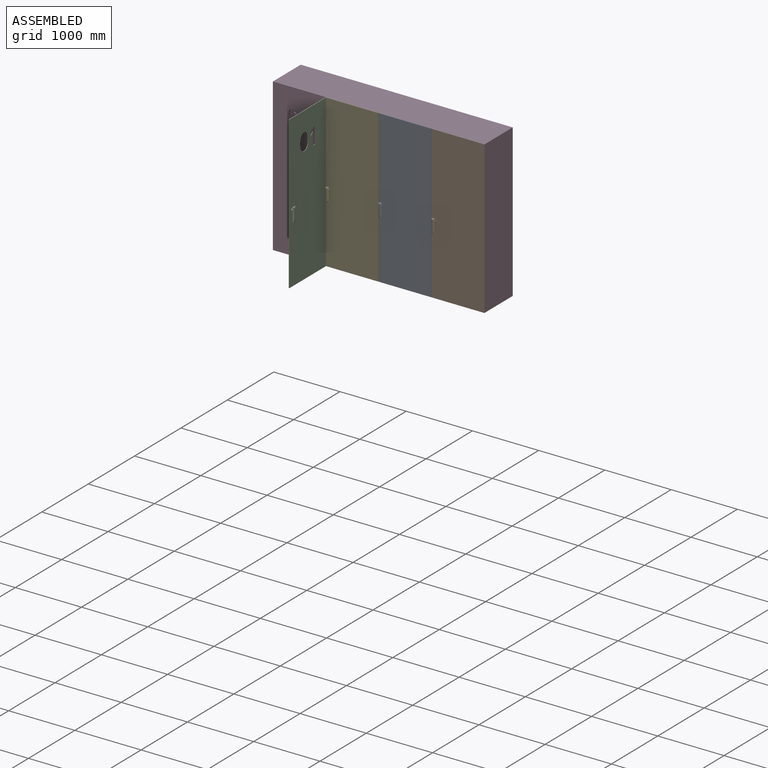
[diagram: assembled view]
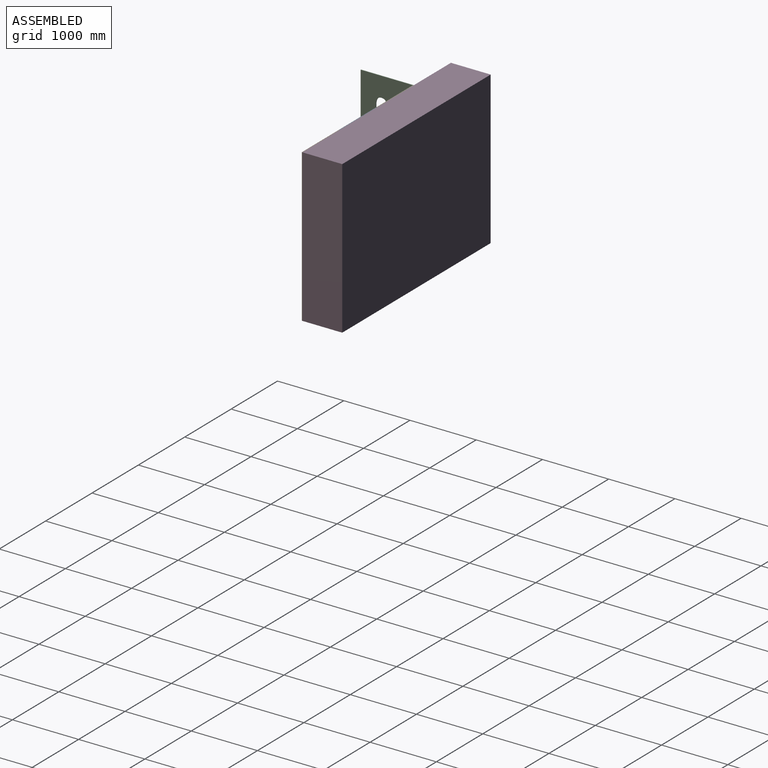
[diagram: assembled view, second angle]
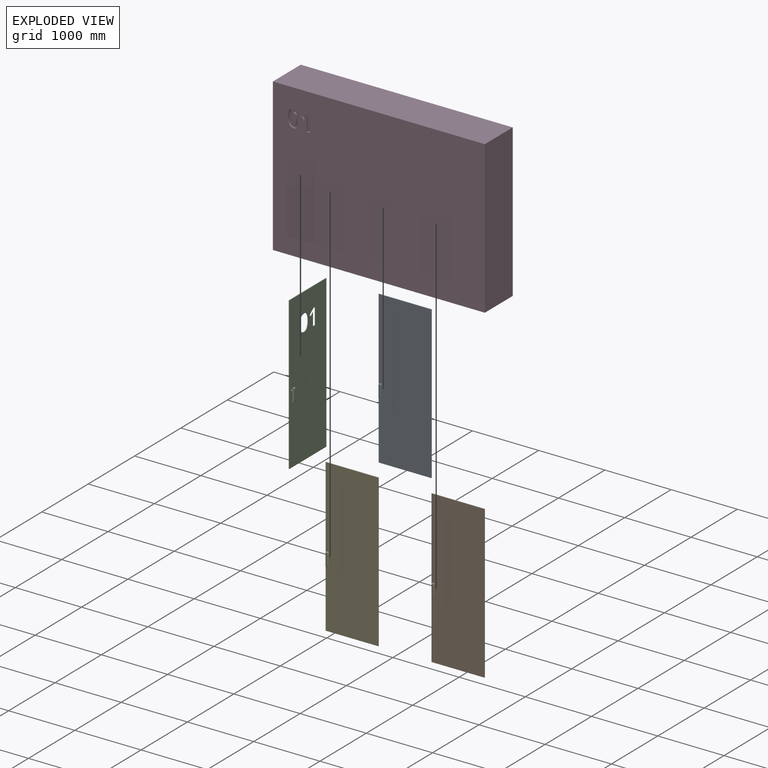
[diagram: exploded view]
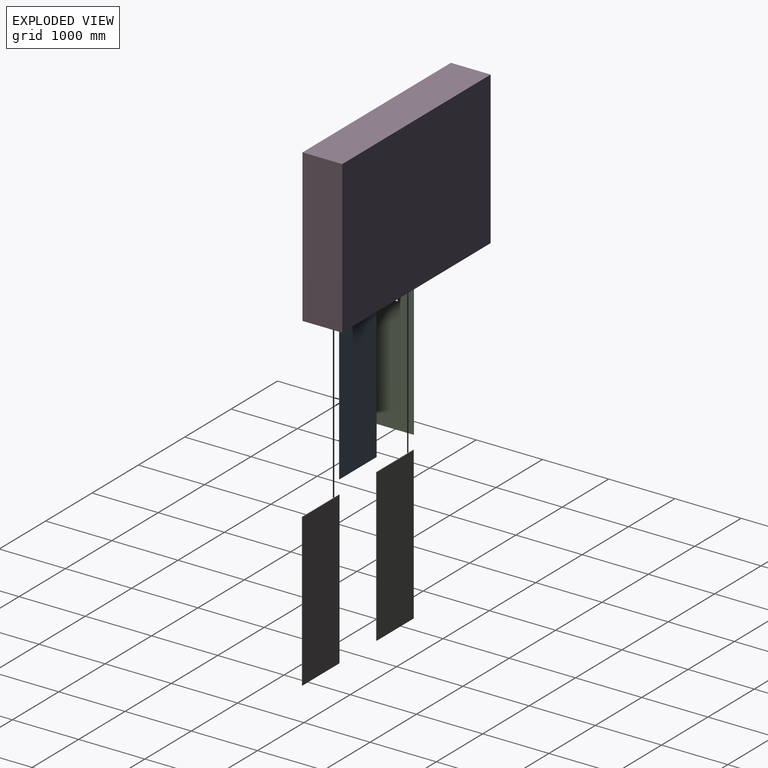
[diagram: exploded view, second angle]
ASSEMBLY  parts=5 mates=4
PART A: 17 faces, bbox 796x55x2300 mm
  f0: cylinder r=20mm len=40mm, axis (0,1,0), area 3141.6mm2, adj f6,f15
  f1: plane 50x5mm, normal (0,0,-1), area 250mm2, adj f2,f4,f6,f7
  f2: plane 200x5mm, normal (1,0,0), area 1000mm2, adj f1,f3,f6,f8
  f3: plane 50x5mm, normal (0,0,1), area 250mm2, adj f2,f4,f6,f10
  f4: plane 200x5mm, normal (-1,0,0), area 1000mm2, adj f1,f3,f6,f9
  f5: plane 170x20mm, normal (0,-1,0), area 3400mm2, adj f7,f8,f9,f10
  f6: plane 200x50mm, normal (0,1,0), area 8743.4mm2, adj f0,f1,f2,f3,f4
  f7: cylinder r=15mm len=50mm, axis (-1,0,0), area 921.2mm2, adj f1,f5,f8,f9
  f8: cylinder r=15mm len=200mm, axis (0,0,-1), area 4455.5mm2, adj f2,f5,f7,f10
  f9: cylinder r=15mm len=200mm, axis (0,0,1), area 4455.5mm2, adj f4,f5,f7,f10
  f10: cylinder r=15mm len=50mm, axis (1,0,0), area 921.2mm2, adj f3,f5,f8,f9
  f11: plane 796x10mm, normal (0,0,1), area 7960mm2, adj f12,f14,f15,f16
  f12: plane 2300x10mm, normal (-1,0,0), area 23000mm2, adj f11,f13,f15,f16
  f13: plane 796x10mm, normal (0,0,-1), area 7960mm2, adj f12,f14,f15,f16
  f14: plane 2300x10mm, normal (1,0,0), area 23000mm2, adj f11,f13,f15,f16
  f15: plane 2300x796mm, normal (0,-1,0), area 1829543.4mm2, adj f0,f11,f12,f13,f14
  f16: plane 2300x796mm, normal (0,1,0), area 1830800mm2, adj f11,f12,f13,f14
PART B: 17 faces, bbox 798x55x2300 mm
  f0: plane 798x10mm, normal (0,0,1), area 7980mm2, adj f1,f3,f4,f5
  f1: plane 2300x10mm, normal (-1,0,0), area 23000mm2, adj f0,f2,f4,f5
  f2: plane 798x10mm, normal (0,0,-1), area 7980mm2, adj f1,f3,f4,f5
  f3: plane 2300x10mm, normal (1,0,0), area 23000mm2, adj f0,f2,f4,f5
  f4: plane 2300x798mm, normal (0,-1,0), area 1834143.4mm2, adj f0,f1,f2,f3,f6
  f5: plane 2300x798mm, normal (0,1,0), area 1835400mm2, adj f0,f1,f2,f3
  f6: cylinder r=20mm len=40mm, axis (0,1,0), area 3141.6mm2, adj f4,f12
  f7: plane 50x5mm, normal (0,0,-1), area 250mm2, adj f8,f10,f12,f13
  f8: plane 200x5mm, normal (1,0,0), area 1000mm2, adj f7,f9,f12,f14
  f9: plane 50x5mm, normal (0,0,1), area 250mm2, adj f8,f10,f12,f16
  f10: plane 200x5mm, normal (-1,0,0), area 1000mm2, adj f7,f9,f12,f15
  f11: plane 170x20mm, normal (0,-1,0), area 3400mm2, adj f13,f14,f15,f16
  f12: plane 200x50mm, normal (0,1,0), area 8743.4mm2, adj f6,f7,f8,f9,f10
  f13: cylinder r=15mm len=50mm, axis (-1,0,0), area 921.2mm2, adj f7,f11,f14,f15
  f14: cylinder r=15mm len=200mm, axis (0,0,-1), area 4455.5mm2, adj f8,f11,f13,f16
  f15: cylinder r=15mm len=200mm, axis (0,0,1), area 4455.5mm2, adj f10,f11,f13,f16
  f16: cylinder r=15mm len=50mm, axis (1,0,0), area 921.2mm2, adj f9,f11,f14,f15
PART C: 35 faces, bbox 798x55x2300 mm
  f0: cylinder r=20mm len=40mm, axis (0,1,0), area 3141.6mm2, adj f6,f33
  f1: plane 200x5mm, normal (1,0,0), area 1000mm2, adj f2,f4,f6,f7
  f2: plane 50x5mm, normal (0,0,1), area 250mm2, adj f1,f3,f6,f8
  f3: plane 200x5mm, normal (-1,0,0), area 1000mm2, adj f2,f4,f6,f10
  f4: plane 50x5mm, normal (0,0,-1), area 250mm2, adj f1,f3,f6,f9
  f5: plane 170x20mm, normal (0,-1,0), area 3400mm2, adj f7,f8,f9,f10
  f6: plane 200x50mm, normal (0,1,0), area 8743.4mm2, adj f0,f1,f2,f3,f4
  f7: cylinder r=15mm len=200mm, axis (0,0,-1), area 4455.5mm2, adj f1,f5,f8,f9
  f8: cylinder r=15mm len=50mm, axis (1,0,0), area 921.2mm2, adj f2,f5,f7,f10
  f9: cylinder r=15mm len=50mm, axis (-1,0,0), area 921.2mm2, adj f4,f5,f7,f10
  f10: cylinder r=15mm len=200mm, axis (0,0,1), area 4455.5mm2, adj f3,f5,f8,f9
  f11: plane 248.01x10mm, normal (-1,0,0), area 2480.1mm2, adj f12,f32,f33,f34
  f12: plane 52.44x10mm, normal (0,0,1), area 524.4mm2, adj f11,f13,f33,f34
  f13: plane 143.52x10mm, normal (1,0,0), area 1435.2mm2, adj f12,f14,f33,f34
  f14: plane 23.56x10mm, normal (1,0,-0.02), area 235.6mm2, adj f13,f15,f33,f34
  f15: plane 25.78x10mm, normal (1,0,-0.03), area 258mm2, adj f14,f16,f33,f34
  f16: extruded ~18.13x17.1mm, area 249.3mm2, adj f15,f17,f33,f34
  f17: plane 28.5x22.91mm, normal (-0.63,0,0.78), area 365.6mm2, adj f16,f18,f33,f34
  f18: plane 31.54x25.3mm, normal (0.78,0,0.63), area 404.3mm2, adj f17,f19,f33,f34
  f19: plane 79.9x63.62mm, normal (0.62,0,-0.78), area 1021.3mm2, adj f18,f32,f33,f34
  f20: extruded ~95.37x21.96mm, area 992.5mm2, adj f21,f30,f33,f34
  f21: extruded ~96.16x21.28mm, area 998.6mm2, adj f20,f22,f33,f34
  f22: extruded ~65.57x31.24mm, area 758.5mm2, adj f21,f23,f33,f34
  f23: extruded ~64.73x32.24mm, area 755.7mm2, adj f22,f24,f33,f34
  f24: extruded ~95.15x21.79mm, area 990mm2, adj f23,f25,f33,f34
  f25: extruded ~96.81x21.22mm, area 1004.9mm2, adj f24,f26,f33,f34
  f26: extruded ~65.3x31.13mm, area 755.5mm2, adj f25,f30,f33,f34
  f27: plane 2300x10mm, normal (1,0,0), area 23000mm2, adj f28,f31,f33,f34
  f28: plane 798x10mm, normal (0,0,1), area 7980mm2, adj f27,f29,f33,f34
  f29: plane 2300x10mm, normal (-1,0,0), area 23000mm2, adj f28,f31,f33,f34
  f30: extruded ~64.89x32.57mm, area 758.9mm2, adj f20,f26,f33,f34
  f31: plane 798x10mm, normal (0,0,-1), area 7980mm2, adj f27,f29,f33,f34
  f32: plane 43.1x10mm, normal (0,0,-1), area 431mm2, adj f11,f19,f33,f34
  f33: plane 2300x798mm, normal (0,-1,0), area 1781295.2mm2, adj f0,f11,f12,f13,f14,f15,f16,f17
  f34: plane 2300x798mm, normal (0,1,0), area 1782551.9mm2, adj f11,f12,f13,f14,f15,f16,f17,f18
PART D: 47 faces, bbox 3200x600x2300 mm
  f0: plane 2300x798mm, normal (0,-1,0), area 1782551.9mm2, adj f1,f2,f6,f17,f25,f26,f27,f28
  f1: plane 3200x600mm, normal (0,0,-1), area 1919976mm2, adj f0,f3,f4,f5,f6,f7,f8,f9
  f2: plane 3200x600mm, normal (0,0,1), area 1919976mm2, adj f0,f3,f4,f5,f6,f7,f8,f9
  f3: plane 2300x796mm, normal (0,-1,0), area 1830800mm2, adj f1,f2,f14,f16
  f4: plane 2300x796mm, normal (0,-1,0), area 1830800mm2, adj f1,f2,f11,f13
  f5: plane 2300x798mm, normal (0,-1,0), area 1835400mm2, adj f1,f2,f7,f10
  f6: plane 2300x600mm, normal (-1,0,0), area 1380000mm2, adj f0,f1,f2,f8
  f7: plane 2300x600mm, normal (1,0,0), area 1380000mm2, adj f1,f2,f5,f8
  f8: plane 3200x2300mm, normal (0,1,0), area 7360000mm2, adj f1,f2,f6,f7
  f9: plane 2300x4mm, normal (0,-1,0), area 9200mm2, adj f1,f2,f10,f11
  f10: plane 2300x2mm, normal (-1,0,0), area 4600mm2, adj f1,f2,f5,f9
  f11: plane 2300x2mm, normal (1,0,0), area 4600mm2, adj f1,f2,f4,f9
  f12: plane 2300x4mm, normal (0,-1,0), area 9200mm2, adj f1,f2,f13,f14
  f13: plane 2300x2mm, normal (-1,0,0), area 4600mm2, adj f1,f2,f4,f12
  f14: plane 2300x2mm, normal (1,0,0), area 4600mm2, adj f1,f2,f3,f12
  f15: plane 2300x4mm, normal (0,-1,0), area 9200mm2, adj f1,f2,f16,f17
  f16: plane 2300x2mm, normal (-1,0,0), area 4600mm2, adj f1,f2,f3,f15
  f17: plane 2300x2mm, normal (1,0,0), area 4600mm2, adj f0,f1,f2,f15
  f18: extruded ~65.35x25mm, area 1653.8mm2, adj f19,f33,f34,f46
  f19: extruded ~65.57x25mm, area 1659.6mm2, adj f18,f20,f34,f46
  f20: extruded ~26.46x25mm, area 887mm2, adj f19,f21,f34,f46
  f21: extruded ~26.38x25mm, area 883.6mm2, adj f20,f22,f34,f46
  f22: extruded ~65.57x25mm, area 1661.1mm2, adj f21,f23,f34,f46
  f23: extruded ~65.11x25mm, area 1649mm2, adj f22,f24,f34,f46
  f24: extruded ~26.49x25mm, area 888mm2, adj f23,f33,f34,f46
  f25: extruded ~96.16x25mm, area 2496.6mm2, adj f0,f26,f32,f34
  f26: extruded ~95.37x25mm, area 2481.3mm2, adj f0,f25,f27,f34
  f27: extruded ~64.89x32.57mm, area 1897.2mm2, adj f0,f26,f28,f34
  f28: extruded ~65.3x31.13mm, area 1888.7mm2, adj f0,f27,f29,f34
  f29: extruded ~96.81x25mm, area 2512.3mm2, adj f0,f28,f30,f34
  f30: extruded ~95.15x25mm, area 2475mm2, adj f0,f29,f31,f34
  f31: extruded ~64.73x32.24mm, area 1889.3mm2, adj f0,f30,f32,f34
  f32: extruded ~65.57x31.24mm, area 1896.3mm2, adj f0,f25,f31,f34
  f33: extruded ~26.54x25mm, area 886.4mm2, adj f18,f24,f34,f46
  f34: plane 255.34x173.37mm, normal (0,-1,0), area 26929.8mm2, adj f18,f19,f20,f21,f22,f23,f24,f25
  f35: plane 52.44x25mm, normal (0,0,1), area 1310.9mm2, adj f0,f36,f44,f45
  f36: plane 248.01x25mm, normal (-1,0,0), area 6200.2mm2, adj f0,f35,f37,f45
  f37: plane 43.1x25mm, normal (0,0,-1), area 1077.5mm2, adj f0,f36,f38,f45
  f38: plane 79.9x63.62mm, normal (0.62,0,-0.78), area 2553.4mm2, adj f0,f37,f39,f45
  f39: plane 31.54x25.3mm, normal (0.78,0,0.63), area 1010.7mm2, adj f0,f38,f40,f45
  f40: plane 28.5x25mm, normal (-0.63,0,0.78), area 914.1mm2, adj f0,f39,f41,f45
  f41: extruded ~25x18.13mm, area 623.2mm2, adj f0,f40,f42,f45
  f42: plane 25.78x25mm, normal (1,0,-0.03), area 644.9mm2, adj f0,f41,f43,f45
  f43: plane 25x23.56mm, normal (1,0,-0.02), area 589.1mm2, adj f0,f42,f44,f45
  f44: plane 143.52x25mm, normal (1,0,0), area 3588mm2, adj f0,f35,f43,f45
  f45: plane 248.01x123mm, normal (0,-1,0), area 15909.8mm2, adj f35,f36,f37,f38,f39,f40,f41,f42
  f46: plane 170.61x69.05mm, normal (0,-1,0), area 10008.6mm2, adj f18,f19,f20,f21,f22,f23,f24,f33
PART E: 17 faces, bbox 796x55x2300 mm
  f0: cylinder r=20mm len=40mm, axis (0,1,0), area 3141.6mm2, adj f6,f15
  f1: plane 50x5mm, normal (0,0,-1), area 250mm2, adj f2,f4,f6,f7
  f2: plane 200x5mm, normal (1,0,0), area 1000mm2, adj f1,f3,f6,f8
  f3: plane 50x5mm, normal (0,0,1), area 250mm2, adj f2,f4,f6,f10
  f4: plane 200x5mm, normal (-1,0,0), area 1000mm2, adj f1,f3,f6,f9
  f5: plane 170x20mm, normal (0,-1,0), area 3400mm2, adj f7,f8,f9,f10
  f6: plane 200x50mm, normal (0,1,0), area 8743.4mm2, adj f0,f1,f2,f3,f4
  f7: cylinder r=15mm len=50mm, axis (-1,0,0), area 921.2mm2, adj f1,f5,f8,f9
  f8: cylinder r=15mm len=200mm, axis (0,0,-1), area 4455.5mm2, adj f2,f5,f7,f10
  f9: cylinder r=15mm len=200mm, axis (0,0,1), area 4455.5mm2, adj f4,f5,f7,f10
  f10: cylinder r=15mm len=50mm, axis (1,0,0), area 921.2mm2, adj f3,f5,f8,f9
  f11: plane 796x10mm, normal (0,0,1), area 7960mm2, adj f12,f14,f15,f16
  f12: plane 2300x10mm, normal (-1,0,0), area 23000mm2, adj f11,f13,f15,f16
  f13: plane 796x10mm, normal (0,0,-1), area 7960mm2, adj f12,f14,f15,f16
  f14: plane 2300x10mm, normal (1,0,0), area 23000mm2, adj f11,f13,f15,f16
  f15: plane 2300x796mm, normal (0,-1,0), area 1829543.4mm2, adj f0,f11,f12,f13,f14
  f16: plane 2300x796mm, normal (0,1,0), area 1830800mm2, adj f11,f12,f13,f14
PLACE A rot(axis=(0,0,1),0deg) t=(-1600,300,0)mm
PLACE B rot(axis=(0,0,-1),0deg) t=(-1600,300,0)mm
PLACE C rot(axis=(0,0,1),90deg) t=(-1402,-1098,0)mm
PLACE D t=(-1600,300,0)mm
PLACE E t=(-1600,300,0)mm
MATE revolute E.f11 <-> D.f2  axis (0,0,-1) through (-2,-300,2300)mm
MATE revolute D.f2 <-> A.f11  axis (0,0,-1) through (798,-300,2300)mm
MATE revolute D.f2 <-> C.f28  axis (0,0,-1) through (-802,-300,2300)mm
MATE revolute D.f2 <-> B.f0  axis (0,0,1) through (1600,-300,2300)mm
